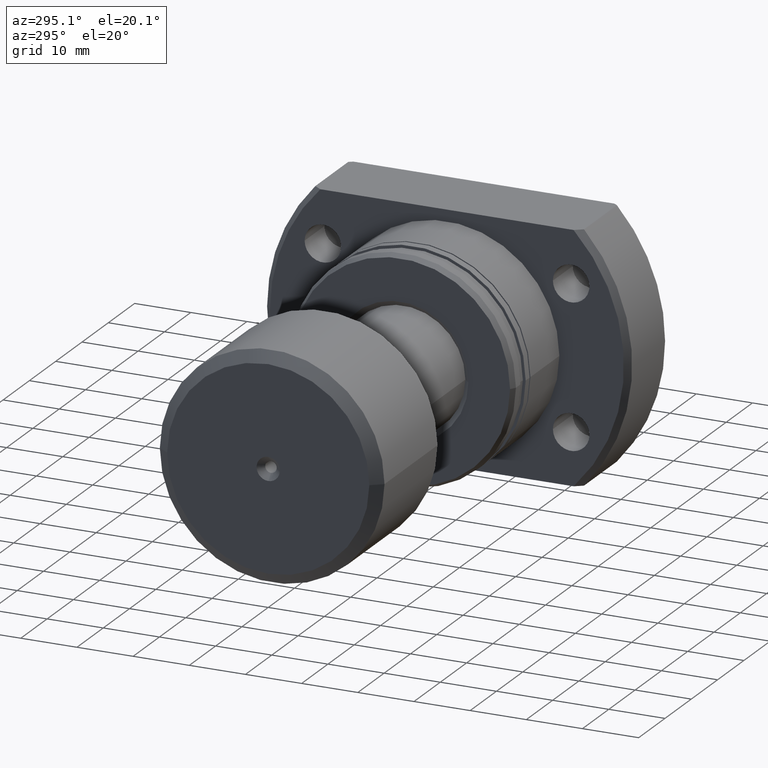
[diagram: clean part render]
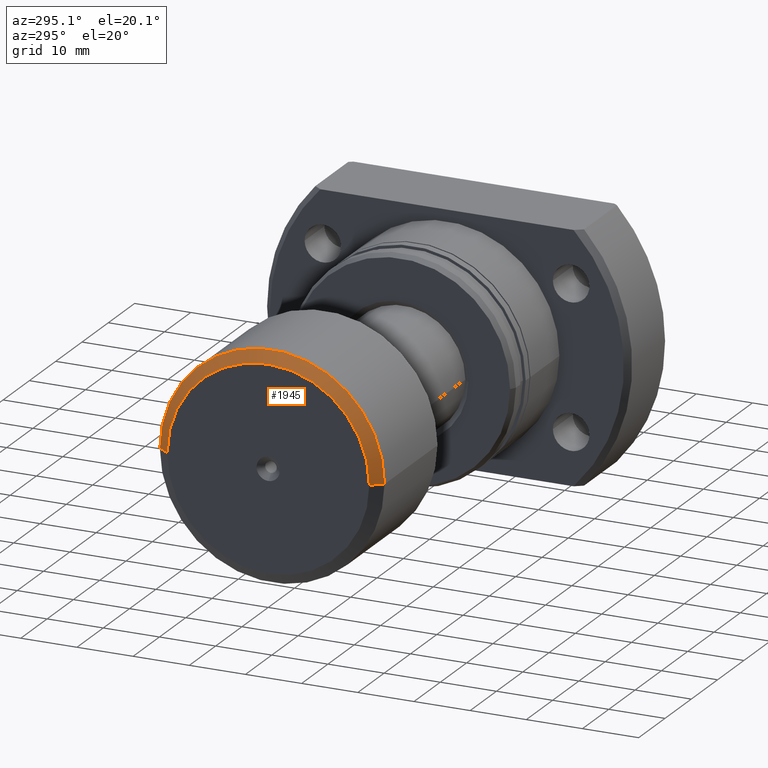
[diagram: same view with one face highlighted and labeled with its STEP entity id]
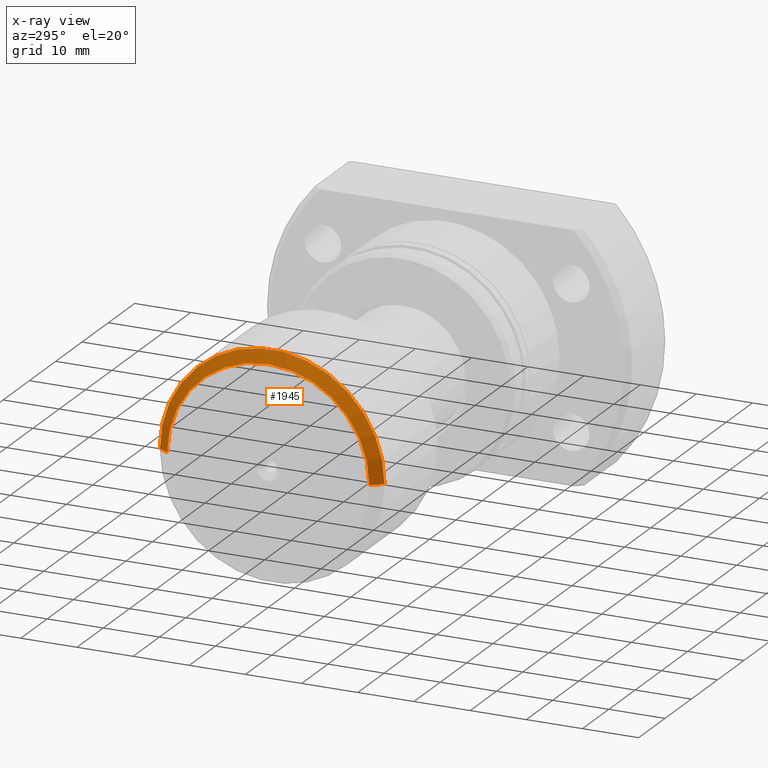
[diagram: x-ray of the same camera — body ghosted, the highlighted face saturated]
A machine part, auxiliary view. The second image highlights one B-rep face of the part: STEP entity #1945.
The next image is the same camera in x-ray: the body ghosted, the highlighted face saturated — about 0% of this face is hidden behind the body in this view.
In plain terms, the highlighted conical surface has half-angle 53.13 deg.
Its self-contained STEP definition (entity closure, byte-faithful):
#131 = DIRECTION ( 'NONE',  ( 1.000000000000000000, 1.069542322069065801E-17, 0.000000000000000000 ) ) ;
#151 = DIRECTION ( 'NONE',  ( 0.6000000000000005329, -0.7999999999999996003, 9.797174393178821220E-17 ) ) ;
#584 = DIRECTION ( 'NONE',  ( -1.069542322069065647E-17, 1.000000000000000000, 0.000000000000000000 ) ) ;
#599 = FACE_OUTER_BOUND ( 'NONE', #2411, .T. ) ;
#604 = DIRECTION ( 'NONE',  ( 1.084202172485504434E-17, -1.000000000000000000, 0.000000000000000000 ) ) ;
#698 = CARTESIAN_POINT ( 'NONE',  ( 2.204364238465235822E-15, -18.00000000000000355, 2.204364238465235822E-15 ) ) ;
#749 = LINE ( 'NONE', #2998, #1609 ) ;
#839 = CIRCLE ( 'NONE', #2861, 18.00000000000000355 ) ;
#1050 = VECTOR ( 'NONE', #151, 1000.000000000000000 ) ;
#1056 = EDGE_CURVE ( 'NONE', #2134, #1059, #839, .T. ) ;
#1059 = VERTEX_POINT ( 'NONE', #2939 ) ;
#1153 = CARTESIAN_POINT ( 'NONE',  ( 1.500000000000002442, 1.604313483103601552E-17, 0.000000000000000000 ) ) ;
#1258 = AXIS2_PLACEMENT_3D ( 'NONE', #2806, #131, #584 ) ;
#1514 = CONICAL_SURFACE ( 'NONE', #1258, 18.00000000000000355, 0.9272952180016115209 ) ;
#1564 = AXIS2_PLACEMENT_3D ( 'NONE', #1153, #2361, #604 ) ;
#1609 = VECTOR ( 'NONE', #1731, 1000.000000000000000 ) ;
#1647 = ORIENTED_EDGE ( 'NONE', *, *, #1686, .T. ) ;
#1686 = EDGE_CURVE ( 'NONE', #2134, #2988, #1956, .T. ) ;
#1731 = DIRECTION ( 'NONE',  ( 0.6000000000000005329, 0.7999999999999996003, 0.000000000000000000 ) ) ;
#1786 = VERTEX_POINT ( 'NONE', #2773 ) ;
#1856 = EDGE_CURVE ( 'NONE', #1059, #1786, #749, .T. ) ;
#1945 = ADVANCED_FACE ( 'NONE', ( #599 ), #1514, .T. ) ;
#1956 = LINE ( 'NONE', #698, #1050 ) ;
#2134 = VERTEX_POINT ( 'NONE', #3186 ) ;
#2153 = CARTESIAN_POINT ( 'NONE',  ( 2.011846620492804129E-15, 2.151755106128676308E-32, 0.000000000000000000 ) ) ;
#2361 = DIRECTION ( 'NONE',  ( -1.000000000000000000, -1.069542322069065801E-17, -0.000000000000000000 ) ) ;
#2411 = EDGE_LOOP ( 'NONE', ( #3002, #1647, #2893, #2623 ) ) ;
#2428 = CARTESIAN_POINT ( 'NONE',  ( 1.500000000000002887, -20.00000000000000000, 2.449293598294706513E-15 ) ) ;
#2549 = CIRCLE ( 'NONE', #1564, 20.00000000000000000 ) ;
#2623 = ORIENTED_EDGE ( 'NONE', *, *, #1856, .F. ) ;
#2720 = DIRECTION ( 'NONE',  ( 1.069542322069065647E-17, -1.000000000000000000, 0.000000000000000000 ) ) ;
#2773 = CARTESIAN_POINT ( 'NONE',  ( 1.500000000000002442, 20.00000000000000000, 0.000000000000000000 ) ) ;
#2806 = CARTESIAN_POINT ( 'NONE',  ( 2.011846620492804129E-15, 2.151755106128676308E-32, 0.000000000000000000 ) ) ;
#2841 = EDGE_CURVE ( 'NONE', #2988, #1786, #2549, .T. ) ;
#2861 = AXIS2_PLACEMENT_3D ( 'NONE', #2153, #3154, #2720 ) ;
#2893 = ORIENTED_EDGE ( 'NONE', *, *, #2841, .T. ) ;
#2939 = CARTESIAN_POINT ( 'NONE',  ( 1.819329002520372041E-15, 18.00000000000000355, 0.000000000000000000 ) ) ;
#2988 = VERTEX_POINT ( 'NONE', #2428 ) ;
#2998 = CARTESIAN_POINT ( 'NONE',  ( 1.819329002520372041E-15, 18.00000000000000355, 0.000000000000000000 ) ) ;
#3002 = ORIENTED_EDGE ( 'NONE', *, *, #1056, .F. ) ;
#3154 = DIRECTION ( 'NONE',  ( -1.000000000000000000, -1.069542322069065801E-17, -0.000000000000000000 ) ) ;
#3186 = CARTESIAN_POINT ( 'NONE',  ( 2.204364238465235822E-15, -18.00000000000000355, 2.326828918379971365E-15 ) ) ;